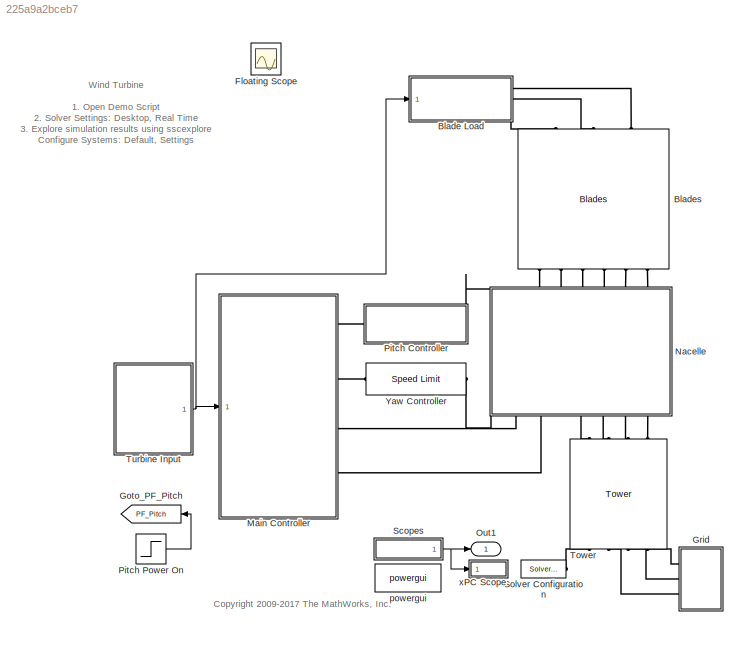
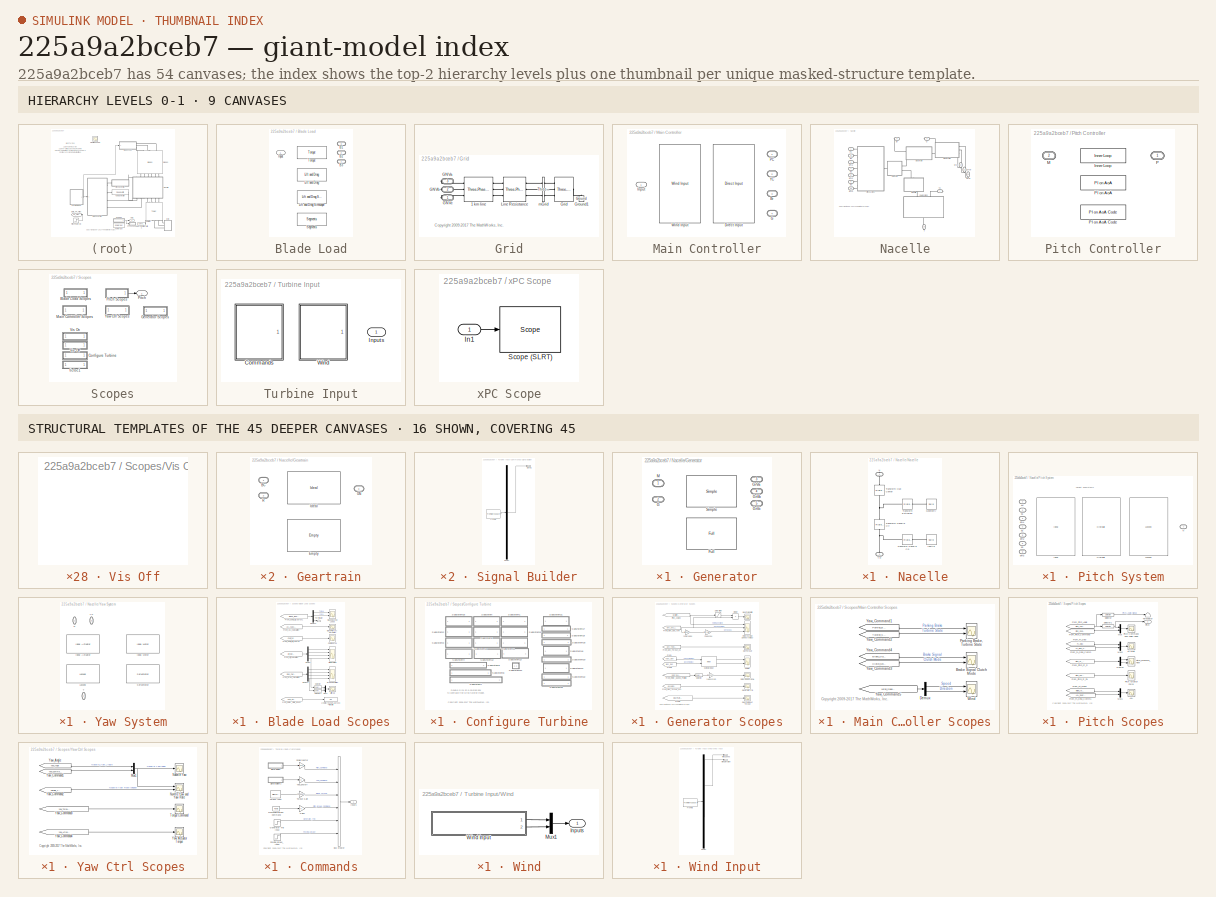
[diagram: thumbnail index - top-2 hierarchy levels (9 canvases) + 16 structural-template representatives of the remaining 45 canvases]
MODEL slx_225a9a2bceb7
KIND model
CONFIG AbsTol = 1e-4
CONFIG EnableMultiTasking = on
CONFIG FixedStep = auto
CONFIG MaxStep = 0.01
CONFIG MinStep = auto
CONFIG PostLoadFcn = warning off Simulink:blocks:MatchingGotoNotFound\nwarning off Simulink:blocks:MatchingFromNotFound\nwarning('off','Simulink:SL_OutputNotConnected');\nwarning off Simulink:Engine:SaveWithParameterizedLinks_Warning\nwarning off Simulink:Engine:SaveWithDisabledLinks_Warning\nwarning('off','Simulink:fixpoint:fxpParameterPrecisionLoss');\nwarning off Simulink:blocks:DTConversionUncessary\nwarning off ne_sli:s...<+245ch>
CONFIG PreLoadFcn = warning off Simulink:Commands:LoadMdlParameterizedLink
CONFIG RelTol = 1e-4
CONFIG SampleTimeConstraint = Unconstrained
CONFIG Solver = ode23t
CONFIG SolverName = ode23t
CONFIG StartFcn = tic
CONFIG StartTime = 0.0
CONFIG StopFcn = Elapsed_Sim_Time = toc;\ndisp(['Elapsed time is ' num2str(Elapsed_Sim_Time)]);
CONFIG StopTime = 70
BLOCK [SubSystem] Blade Load
  AttributesFormatString = %<ActiveVariant>
  OverrideUsingVariant = Lift_and_Drag
  Ports = [1, 0, 0, 0, 0, 0, 3]
  RequestExecContextInheritance = off
  Variant = on
BLOCK [PMIOPort] Blade Load/B1
  Port = 3
  Side = Right
BLOCK [PMIOPort] Blade Load/B2
  Port = 2
  Side = Right
BLOCK [PMIOPort] Blade Load/B3
  Port = 1
  Side = Right
BLOCK [Inport] Blade Load/Input
  IconDisplay = Port number
BLOCK [Reference] Blade Load/Lift and Drag  REF=Wind_Lib/Lift and Drag
  Ports = [1, 0, 0, 0, 0, 0, 3]
  SourceBlock = Wind_Lib/Lift and Drag
BLOCK [Reference] Blade Load/Lift and Drag Simscape  REF=Wind_Lib/Lift and Drag Simscape
  Ports = [1, 0, 0, 0, 0, 0, 3]
  SourceBlock = Wind_Lib/Lift and Drag Simscape
BLOCK [Reference] Blade Load/Segments  REF=Wind_Lib/Segments
  Ports = [1, 0, 0, 0, 0, 0, 3]
  SourceBlock = Wind_Lib/Segments
BLOCK [Reference] Blade Load/Torque  REF=Wind_Lib/Torque
  Ports = [1, 0, 0, 0, 0, 0, 3]
  SourceBlock = Wind_Lib/Torque
BLOCK [Reference] Blades  REF=Blades_Lib/Blades
  Ports = [0, 0, 0, 0, 0, 6, 3]
  SourceBlock = Blades_Lib/Blades
BLOCK [Scope] Floating Scope
  IOType = viewer
  NumInputPorts = 1
  Ports = []
  ScopeSpecificationString = C++SS(StrPVP('Location','[376, 294, 700, 533]'),StrPVP('Open','off'),MxPVP('AxesTitles',53,'struct(''axes1'',''%<SignalLabel>'')'),StrPVP('DataFormat','StructureWithTime'),StrPVP('BlockParamSampleTime','0'),StrPVP('LimitDataPoints','on'),StrPVP('DataLoggingDecimation','1'),StrPVP('BlockParamSampleInput','off'),StrPVP('DataLoggingDecimation','1'),StrPVP('DataLoggingDecimation','1'),StrPVP('DataLogg...<+765ch>
BLOCK [Goto] Goto_PF_Pitch
  GotoTag = PF_Pitch
  TagVisibility = global
BLOCK [SubSystem] Grid
  Ports = [0, 0, 0, 0, 0, 0, 3]
  RequestExecContextInheritance = off
  Variant = off
BLOCK [Reference] Grid/1 km line   REF=powerlib/Elements/Three-Phase
PI Section Line
  AttributesFormatString = \n
  Ports = [0, 0, 0, 0, 0, 3, 3]
  SourceBlock = powerlib/Elements/Three-Phase\nPI Section Line
  SourceProductBaseCode = PS
  SourceProductName = Simscape Power Systems
  SourceType = Three-Phase PI Section Line
BLOCK [PMIOPort] Grid/GNVa
  Port = 3
  Side = Right
BLOCK [PMIOPort] Grid/GNVb
  Port = 2
  Side = Right
BLOCK [PMIOPort] Grid/GNVc
  Port = 1
  Side = Right
BLOCK [Reference] Grid/Grid  REF=powerlib/Electrical
Sources/Three-Phase
Programmable
Voltage Source
  Ports = [0, 0, 0, 0, 0, 1, 3]
  SourceBlock = powerlib/Electrical\nSources/Three-Phase\nProgrammable\nVoltage Source
  SourceProductBaseCode = PS
  SourceProductName = Simscape Power Systems
  SourceType = Three-Phase Programmable Voltage Source
BLOCK [Reference] Grid/Ground1  REF=powerlib/Elements/Ground
  AttributesFormatString = \n
  Ports = [0, 0, 0, 0, 0, 1]
  SourceBlock = powerlib/Elements/Ground
  SourceProductBaseCode = PS
  SourceProductName = Simscape Power Systems
  SourceType = Ground
BLOCK [Reference] Grid/Line Resistance  REF=powerlib/Elements/Three-Phase
Mutual Inductance
Z1-Z0
  AttributesFormatString = \n
  Ports = [0, 0, 0, 0, 0, 3, 3]
  SourceBlock = powerlib/Elements/Three-Phase\nMutual Inductance\nZ1-Z0
  SourceProductBaseCode = PS
  SourceProductName = Simscape Power Systems
  SourceType = Three-Phase Mutual Inductance Z1-Z0
BLOCK [Reference] Grid/mGrid  REF=powerlib/Measurements/Three-Phase
V-I Measurement
  Ports = [0, 0, 0, 0, 0, 3, 3]
  SourceBlock = powerlib/Measurements/Three-Phase\nV-I Measurement
  SourceProductBaseCode = PS
  SourceProductName = Simscape Power Systems
  SourceType = Three-Phase VI Measurement
BLOCK [SubSystem] Main Controller
  AttributesFormatString = %<ActiveVariant>
  OverrideUsingVariant = Wind_Input
  Ports = [1, 0, 0, 0, 0, 0, 4]
  RequestExecContextInheritance = off
  Variant = on
BLOCK [PMIOPort] Main Controller/Br
  Port = 3
  Side = Right
  Tag = PMCPort
BLOCK [Reference] Main Controller/Direct Input  REF=Main_Controller_Lib/Direct Input
  Ports = [1, 0, 0, 0, 0, 0, 4]
  SourceBlock = Main_Controller_Lib/Direct Input
BLOCK [PMIOPort] Main Controller/G
  Port = 4
  Side = Right
  Tag = PMCPort
BLOCK [Inport] Main Controller/Input
  IconDisplay = Port number
BLOCK [PMIOPort] Main Controller/PC
  Port = 1
  Side = Right
  Tag = PMCPort
BLOCK [Reference] Main Controller/Wind Input  REF=Main_Controller_Lib/Wind Input
  Ports = [1, 0, 0, 0, 0, 0, 4]
  SourceBlock = Main_Controller_Lib/Wind Input
BLOCK [PMIOPort] Main Controller/YC
  Port = 2
  Side = Right
  Tag = PMCPort
BLOCK [SubSystem] Nacelle
  Ports = [0, 0, 0, 0, 0, 7, 7]
  RequestExecContextInheritance = off
  Variant = off
BLOCK [PMIOPort] Nacelle/B1
  Port = 2
  Side = Left
  Tag = PMCPort
BLOCK [PMIOPort] Nacelle/B2
  Port = 4
  Side = Left
  Tag = PMCPort
BLOCK [PMIOPort] Nacelle/B3
  Port = 6
  Side = Left
  Tag = PMCPort
BLOCK [PMIOPort] Nacelle/BPA1
  Port = 3
  Side = Left
  Tag = PMCPort
BLOCK [PMIOPort] Nacelle/BPA2
  Port = 5
  Side = Left
  Tag = PMCPort
BLOCK [PMIOPort] Nacelle/BPA3
  Port = 12
  Side = Left
  Tag = PMCPort
BLOCK [PMIOPort] Nacelle/Br
  Port = 8
  Side = Right
  Tag = PMCPort
BLOCK [PMIOPort] Nacelle/G
  Port = 9
  Side = Right
  Tag = PMCPort
BLOCK [SubSystem] Nacelle/Geartrain
  AttributesFormatString = %<ActiveVariant>
  OverrideUsingVariant = Ideal
  Ports = [0, 0, 0, 0, 0, 2, 1]
  RequestExecContextInheritance = off
  Variant = on
BLOCK [PMIOPort] Nacelle/Geartrain/BC
  Port = 1
  Side = Left
  Tag = PMCPort
BLOCK [Reference] Nacelle/Geartrain/Empty  REF=Geartrain_Lib/Empty
  Ports = [0, 0, 0, 0, 0, 2, 1]
  SourceBlock = Geartrain_Lib/Empty
BLOCK [PMIOPort] Nacelle/Geartrain/GN
  Port = 3
  Side = Right
  Tag = PMCPort
BLOCK [Reference] Nacelle/Geartrain/Ideal  REF=Geartrain_Lib/Ideal
  Ports = [0, 0, 0, 0, 0, 2, 1]
  SourceBlock = Geartrain_Lib/Ideal
BLOCK [PMIOPort] Nacelle/Geartrain/R
  Port = 2
  Side = Left
  Tag = PMCPort
BLOCK [SubSystem] Nacelle/Generator
  AttributesFormatString = %<ActiveVariant>
  OverrideUsingVariant = Full
  Ports = [0, 0, 0, 0, 0, 2, 3]
  RequestExecContextInheritance = off
  Variant = on
BLOCK [Reference] Nacelle/Generator/Full  REF=Generator_Lib/Full
  Ports = [0, 0, 0, 0, 0, 2, 3]
  SourceBlock = Generator_Lib/Full
BLOCK [PMIOPort] Nacelle/Generator/G
  Port = 2
  Side = Left
BLOCK [PMIOPort] Nacelle/Generator/GrVa
  Port = 3
  Side = Right
BLOCK [PMIOPort] Nacelle/Generator/GrVb
  Port = 4
  Side = Right
BLOCK [PMIOPort] Nacelle/Generator/GrVc
  Port = 5
  Side = Right
BLOCK [PMIOPort] Nacelle/Generator/M
  Port = 1
  Side = Left
  Tag = PMCPort
BLOCK [Reference] Nacelle/Generator/Simple  REF=Generator_Lib/Simple
  Ports = [0, 0, 0, 0, 0, 2, 3]
  SourceBlock = Generator_Lib/Simple
BLOCK [PMIOPort] Nacelle/GrVa
  Port = 11
  Side = Right
  Tag = PMCPort
BLOCK [PMIOPort] Nacelle/GrVb
  Port = 13
  Side = Right
  Tag = PMCPort
BLOCK [PMIOPort] Nacelle/GrVc
  Port = 14
  Side = Right
  Tag = PMCPort
BLOCK [SubSystem] Nacelle/Hub Axis
  AttributesFormatString = %<ActiveVariant>
  OverrideUsingVariant = Rotate
  Ports = [0, 0, 0, 0, 0, 1, 2]
  RequestExecContextInheritance = off
  Tag = CustomStyle
  Variant = on
BLOCK [PMIOPort] Nacelle/Hub Axis/G
  Port = 1
  Side = Right
BLOCK [Reference] Nacelle/Hub Axis/Locked  REF=Hub_Axis_Lib/Locked
  Ports = [0, 0, 0, 0, 0, 1, 2]
  SourceBlock = Hub_Axis_Lib/Locked
BLOCK [PMIOPort] Nacelle/Hub Axis/N
  Port = 3
  Side = Right
BLOCK [PMIOPort] Nacelle/Hub Axis/R
  Port = 2
  Side = Left
BLOCK [Reference] Nacelle/Hub Axis/Rotate  REF=Hub_Axis_Lib/Rotate
  Ports = [0, 0, 0, 0, 0, 1, 2]
  SourceBlock = Hub_Axis_Lib/Rotate
BLOCK [SubSystem] Nacelle/Nacelle
  Ports = [0, 0, 0, 0, 0, 1, 1]
  RequestExecContextInheritance = off
  Variant = off
BLOCK [Reference] Nacelle/Nacelle/Geometry  REF=sm_lib/Body Elements/Solid
  Ports = [0, 0, 0, 0, 0, 0, 1]
  SourceBlock = sm_lib/Body Elements/Solid
  SourceProductBaseCode = MS
  SourceProductName = Simscape Multibody
  SourceType = Solid
BLOCK [Reference] Nacelle/Nacelle/Inertia  REF=sm_lib/Body Elements/Solid
  Ports = [0, 0, 0, 0, 0, 0, 1]
  SourceBlock = sm_lib/Body Elements/Solid
  SourceProductBaseCode = MS
  SourceProductName = Simscape Multibody
  SourceType = Solid
BLOCK [PMIOPort] Nacelle/Nacelle/N
  Port = 1
  Side = Right
BLOCK [Reference] Nacelle/Nacelle/Transform Extrusion  REF=sm_lib/Frames and
Transforms/Rigid
Transform
  Ports = [0, 0, 0, 0, 0, 1, 1]
  SourceBlock = sm_lib/Frames and\nTransforms/Rigid\nTransform
  SourceProductBaseCode = MS
  SourceProductName = Simscape Multibody
  SourceType = Rigid\nTransform
BLOCK [Reference] Nacelle/Nacelle/Transform Hub Center  REF=sm_lib/Frames and
Transforms/Rigid
Transform
  Ports = [0, 0, 0, 0, 0, 1, 1]
  SourceBlock = sm_lib/Frames and\nTransforms/Rigid\nTransform
  SourceProductBaseCode = MS
  SourceProductName = Simscape Multibody
  SourceType = Rigid\nTransform
BLOCK [Reference] Nacelle/Nacelle/Transform Nacelle CG  REF=sm_lib/Frames and
Transforms/Rigid
Transform
  Ports = [0, 0, 0, 0, 0, 1, 1]
  SourceBlock = sm_lib/Frames and\nTransforms/Rigid\nTransform
  SourceProductBaseCode = MS
  SourceProductName = Simscape Multibody
  SourceType = Rigid\nTransform
BLOCK [Reference] Nacelle/Nacelle/Transform Nacelle Ctr  REF=sm_lib/Frames and
Transforms/Rigid
Transform
  Ports = [0, 0, 0, 0, 0, 1, 1]
  SourceBlock = sm_lib/Frames and\nTransforms/Rigid\nTransform
  SourceProductBaseCode = MS
  SourceProductName = Simscape Multibody
  SourceType = Rigid\nTransform
BLOCK [PMIOPort] Nacelle/Nacelle/YR
  Port = 2
  Side = Left
BLOCK [PMIOPort] Nacelle/PC
  Port = 1
  Side = Left
  Tag = PMCPort
BLOCK [SubSystem] Nacelle/Pitch System
  AttributesFormatString = %<ActiveVariant>
  OverrideUsingVariant = Ideal
  Ports = [0, 0, 0, 0, 0, 7, 1]
  RequestExecContextInheritance = off
  Tag = CustomStyle
  Variant = on
BLOCK [PMIOPort] Nacelle/Pitch System/B1
  Port = 2
  Side = Left
  Tag = PMCPort
BLOCK [PMIOPort] Nacelle/Pitch System/B2
  Port = 4
  Side = Left
  Tag = PMCPort
BLOCK [PMIOPort] Nacelle/Pitch System/B3
  Port = 6
  Side = Left
  Tag = PMCPort
BLOCK [PMIOPort] Nacelle/Pitch System/BPA1
  Port = 3
  Side = Left
  Tag = PMCPort
BLOCK [PMIOPort] Nacelle/Pitch System/BPA2
  Port = 5
  Side = Left
  Tag = PMCPort
BLOCK [PMIOPort] Nacelle/Pitch System/BPA3
  Port = 8
  Side = Left
  Tag = PMCPort
BLOCK [Reference] Nacelle/Pitch System/Hydraulic  REF=Pitch_System_Lib/Hydraulic
  Ports = [0, 0, 0, 0, 0, 7, 1]
  SourceBlock = Pitch_System_Lib/Hydraulic
BLOCK [Reference] Nacelle/Pitch System/Ideal  REF=Pitch_System_Lib/Ideal
  Ports = [0, 0, 0, 0, 0, 7, 1]
  SourceBlock = Pitch_System_Lib/Ideal
BLOCK [Reference] Nacelle/Pitch System/Locked  REF=Pitch_System_Lib/Locked
  Ports = [0, 0, 0, 0, 0, 7, 1]
  SourceBlock = Pitch_System_Lib/Locked
BLOCK [PMIOPort] Nacelle/Pitch System/N
  Port = 7
  Side = Right
  Tag = PMCPort
BLOCK [PMIOPort] Nacelle/Pitch System/PC
  Port = 1
  Side = Left
  Tag = PMCPort
BLOCK [PMIOPort] Nacelle/T
  Port = 10
  Side = Right
  Tag = PMCPort
BLOCK [PMIOPort] Nacelle/YC
  Port = 7
  Side = Right
  Tag = PMCPort
BLOCK [SubSystem] Nacelle/Yaw System
  AttributesFormatString = %<ActiveVariant>
  OverrideUsingVariant = Ideal_Actuator
  Ports = [0, 0, 0, 0, 0, 1, 2]
  RequestExecContextInheritance = off
  Tag = CustomStyle
  Variant = on
BLOCK [Reference] Nacelle/Yaw System/Ideal Actuator  REF=Yaw_System_Lib/Ideal Actuator
  Ports = [0, 0, 0, 0, 0, 1, 2]
  SourceBlock = Yaw_System_Lib/Ideal Actuator
BLOCK [Reference] Nacelle/Yaw System/Ideal Motor  REF=Yaw_System_Lib/Ideal Motor
  Ports = [0, 0, 0, 0, 0, 1, 2]
  SourceBlock = Yaw_System_Lib/Ideal Motor
BLOCK [Reference] Nacelle/Yaw System/Locked  REF=Yaw_System_Lib/Locked
  Ports = [0, 0, 0, 0, 0, 1, 2]
  SourceBlock = Yaw_System_Lib/Locked
BLOCK [PMIOPort] Nacelle/Yaw System/N
  Port = 1
  Side = Right
BLOCK [Reference] Nacelle/Yaw System/Servomotor  REF=Yaw_System_Lib/Servomotor
  Ports = [0, 0, 0, 0, 0, 1, 2]
  SourceBlock = Yaw_System_Lib/Servomotor
BLOCK [PMIOPort] Nacelle/Yaw System/T
  Port = 2
  Side = Left
BLOCK [PMIOPort] Nacelle/Yaw System/YC
  Port = 3
  Side = Right
BLOCK [Outport] Out1
  IconDisplay = Port number
BLOCK [SubSystem] Pitch Controller
  AttributesFormatString = %<ActiveVariant>
  OverrideUsingVariant = PI_on_AoA
  Ports = [0, 0, 0, 0, 0, 1, 1]
  RequestExecContextInheritance = off
  Variant = on
BLOCK [Reference] Pitch Controller/Inner Loop  REF=Pitch_Controller_Lib/Inner Loop
  Ports = [0, 0, 0, 0, 0, 1, 1]
  SourceBlock = Pitch_Controller_Lib/Inner Loop
BLOCK [PMIOPort] Pitch Controller/M
  Port = 2
  Side = Left
  Tag = PMCPort
BLOCK [PMIOPort] Pitch Controller/P
  Port = 1
  Side = Right
  Tag = PMCPort
BLOCK [Reference] Pitch Controller/PI on AoA  REF=Pitch_Controller_Lib/PI on AoA
  Ports = [0, 0, 0, 0, 0, 1, 1]
  SourceBlock = Pitch_Controller_Lib/PI on AoA
BLOCK [Reference] Pitch Controller/PI on AoA Code  REF=Pitch_Controller_Lib/PI on AoA Code
  Ports = [0, 0, 0, 0, 0, 1, 1]
  SourceBlock = Pitch_Controller_Lib/PI on AoA Code
BLOCK [Step] Pitch Power On
  After = 24
  Before = 24
  SampleTime = 0
  Time = 20
BLOCK [SubSystem] Scopes
  Ports = [0, 1]
  RequestExecContextInheritance = off
  Variant = off
BLOCK [SubSystem] Scopes/Blade Load Scopes
  AncestorBlock = Wind_Lib/Blade Load Scopes
  Ports = []
  RequestExecContextInheritance = off
  Variant = off
BLOCK [Display] Scopes/Blade Load Scopes/1 = Heli 2 = Young's Approx 3 = Windmill
  Decimation = 1
  Ports = [1]
BLOCK [Scope] Scopes/Blade Load Scopes/Blade Bearing Loads
  NumInputPorts = 2
  Ports = [2]
  ScopeSpecificationString = C++SS(StrPVP('Location','[536, 506, 1008, 715]'),StrPVP('Open','off'),StrPVP('ZoomMode','yonly'),MxPVP('AxesTitles',53,'struct(''axes1'',''%<SignalLabel>'',''axes2'',''%<SignalLabel>'')'),StrPVP('TimeRange','80'),StrPVP('YMin','-2000000~-500000'),StrPVP('YMax','4000000~500000'),StrPVP('SaveName','ScopeData10'),StrPVP('DataFormat','StructureWithTime'),StrPVP('LimitDataPoints','off'),StrPVP('BlockPa...<+947ch>
BLOCK [Scope] Scopes/Blade Load Scopes/Blade Pitch, AoA Zero Pitch
  NumInputPorts = 1
  Ports = [1]
  ScopeSpecificationString = C++SS(StrPVP('Location','[437, 643, 822, 910]'),StrPVP('Open','off'),StrPVP('ZoomMode','yonly'),MxPVP('AxesTitles',53,'struct(''axes1'',''%<SignalLabel>'')'),StrPVP('TimeRange','400'),StrPVP('YMin','0'),StrPVP('YMax','100'),StrPVP('SaveName','ScopeData3'),StrPVP('DataFormat','StructureWithTime'),StrPVP('LimitDataPoints','off'),StrPVP('BlockParamSampleTime','0'),StrPVP('DataLoggingDecimation','1'),...<+891ch>
BLOCK [Scope] Scopes/Blade Load Scopes/Coeff Approx
  NumInputPorts = 1
  Ports = [1]
  ScopeSpecificationString = C++SS(StrPVP('Location','[692, 281, 1164, 834]'),StrPVP('Open','off'),StrPVP('ZoomMode','yonly'),MxPVP('AxesTitles',53,'struct(''axes1'',''%<SignalLabel>'')'),StrPVP('TimeRange','400'),StrPVP('YMin','-0.1139986551164904'),StrPVP('YMax','0.01794057021302797'),StrPVP('SaveName','ScopeData4'),StrPVP('DataFormat','StructureWithTime'),StrPVP('LimitDataPoints','off'),StrPVP('BlockParamSampleTime','0'),S...<+926ch>
BLOCK [Demux] Scopes/Blade Load Scopes/Demux
  DisplayOption = bar
  Outputs = [1 3 3 3]
  Ports = [1, 4]
BLOCK [Demux] Scopes/Blade Load Scopes/Demux1
  DisplayOption = bar
  Outputs = [1 3 3 3]
  Ports = [1, 4]
BLOCK [Demux] Scopes/Blade Load Scopes/Demux2
  DisplayOption = bar
  Outputs = [3 3 12]
  Ports = [1, 3]
BLOCK [Scope] Scopes/Blade Load Scopes/Drag Calculation
  NumInputPorts = 4
  Ports = [4]
  ScopeSpecificationString = C++SS(StrPVP('Location','[84, 409, 556, 962]'),StrPVP('Open','off'),StrPVP('ZoomMode','yonly'),MxPVP('AxesTitles',53,'struct(''axes1'',''%<SignalLabel>'',''axes2'',''%<SignalLabel>'',''axes3'',''%<SignalLabel>'',''axes4'',''%<SignalLabel>'')'),StrPVP('TimeRange','400'),StrPVP('YMin','-2000~-50~0~0'),StrPVP('YMax','4000~100~6000~6000'),StrPVP('SaveName','ScopeData5'),StrPVP('DataFormat','StructureW...<+1004ch>
BLOCK [From] Scopes/Blade Load Scopes/From_AoA_Calculation
  GotoTag = AoA_Calculation
BLOCK [From] Scopes/Blade Load Scopes/From_Coeff_Lift_Approx
  GotoTag = Coeff_Lift_Approx
BLOCK [From] Scopes/Blade Load Scopes/From_Coeff_Lift_Approx1
  GotoTag = Blade_Bearing_Loads
  TagVisibility = global
BLOCK [From] Scopes/Blade Load Scopes/From_Drag_Calculation
  GotoTag = Drag_Calculation
BLOCK [From] Scopes/Blade Load Scopes/From_Lift_Calculation
  GotoTag = Lift_Calculation
BLOCK [From] Scopes/Blade Load Scopes/From_Rotor_State_Enum
  GotoTag = Rotor_State_Enum
  TagVisibility = global
BLOCK [Scope] Scopes/Blade Load Scopes/Lift Calculation
  NumInputPorts = 4
  Ports = [4]
  ScopeSpecificationString = C++SS(StrPVP('Location','[765, 373, 1275, 926]'),StrPVP('Open','off'),StrPVP('ZoomMode','yonly'),MxPVP('AxesTitles',53,'struct(''axes1'',''%<SignalLabel>'',''axes2'',''%<SignalLabel>'',''axes3'',''%<SignalLabel>'',''axes4'',''%<SignalLabel>'')'),StrPVP('TimeRange','400'),StrPVP('YMin','0~-50~-0.5~-50000'),StrPVP('YMax','2000~100~1.5~100000'),StrPVP('SaveName','ScopeData2'),StrPVP('DataFormat','Str...<+1011ch>
BLOCK [Scope] Scopes/Blade Load Scopes/Lift, Drag
  NumInputPorts = 1
  Ports = [1]
  ScopeSpecificationString = C++SS(StrPVP('Location','[117, 603, 673, 870]'),StrPVP('Open','off'),StrPVP('ZoomMode','yonly'),MxPVP('AxesTitles',53,'struct(''axes1'',''%<SignalLabel>'')'),StrPVP('TimeRange','160'),StrPVP('YMin','-250.4351759669439'),StrPVP('YMax','408.3026221352307'),StrPVP('SaveName','ScopeData1'),StrPVP('DataFormat','StructureWithTime'),StrPVP('LimitDataPoints','off'),StrPVP('BlockParamSampleTime','0'),StrPV...<+922ch>
BLOCK [Mux] Scopes/Blade Load Scopes/Mux1
  DisplayOption = bar
  Inputs = 2
  Ports = [2, 1]
BLOCK [Selector] Scopes/Blade Load Scopes/Selector
  IndexOptions = Index vector (dialog)
  Indices = [1]
  InputPortWidth = 3
  OutputSizes = 1
  Ports = [1, 1]
BLOCK [Selector] Scopes/Blade Load Scopes/Selector1
  IndexOptions = Index vector (dialog)
  Indices = [1 3]
  InputPortWidth = 3
  OutputSizes = 1
  Ports = [1, 1]
BLOCK [Terminator] Scopes/Blade Load Scopes/Terminator
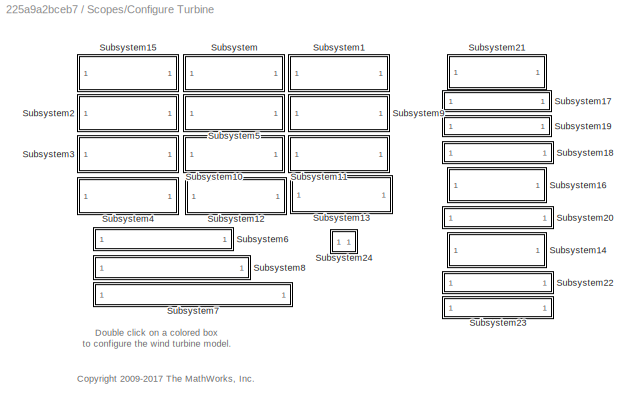
BLOCK [SubSystem] Scopes/Configure Turbine
  Ports = []
  RequestExecContextInheritance = off
  Variant = off
BLOCK [SubSystem] Scopes/Configure Turbine/Subsystem
  OpenFcn = Select_Turbine_Systems('I_Pitch Test', WT_Configs)
  Ports = []
  RequestExecContextInheritance = off
  Variant = off
BLOCK [SubSystem] Scopes/Configure Turbine/Subsystem1
  OpenFcn = Select_Turbine_Systems('H_Pitch Test', WT_Configs)
  Ports = []
  RequestExecContextInheritance = off
  Variant = off
BLOCK [SubSystem] Scopes/Configure Turbine/Subsystem10
  OpenFcn = Select_Turbine_Systems('I_Pitch IM_Yaw Test', WT_Configs)
  Ports = []
  RequestExecContextInheritance = off
  Variant = off
BLOCK [SubSystem] Scopes/Configure Turbine/Subsystem11
  OpenFcn = Select_Turbine_Systems('H_Pitch IM_Yaw Test', WT_Configs)
  Ports = []
  RequestExecContextInheritance = off
  Variant = off
BLOCK [SubSystem] Scopes/Configure Turbine/Subsystem12
  OpenFcn = Select_Turbine_Systems('I_Pitch S_Yaw Test', WT_Configs)
  Ports = []
  RequestExecContextInheritance = off
  Variant = off
BLOCK [SubSystem] Scopes/Configure Turbine/Subsystem13
  OpenFcn = Select_Turbine_Systems('H_Pitch S_Yaw Test', WT_Configs)
  Ports = []
  RequestExecContextInheritance = off
  Variant = off
BLOCK [SubSystem] Scopes/Configure Turbine/Subsystem14
  OpenFcn = Compare_Yaw_Actuators;
  Ports = []
  RequestExecContextInheritance = off
  Variant = off
BLOCK [SubSystem] Scopes/Configure Turbine/Subsystem15
  Ports = []
  RequestExecContextInheritance = off
  Variant = off
BLOCK [SubSystem] Scopes/Configure Turbine/Subsystem16
  OpenFcn = Compare_Pitch_Actuators;
  Ports = []
  RequestExecContextInheritance = off
  Variant = off
BLOCK [SubSystem] Scopes/Configure Turbine/Subsystem17
  OpenFcn = Pitch_Actuation_Linkage
  Ports = []
  RequestExecContextInheritance = off
  Variant = off
BLOCK [SubSystem] Scopes/Configure Turbine/Subsystem18
  OpenFcn = Pitch_Actuation_Hydraulic_Testrig
  Ports = []
  RequestExecContextInheritance = off
  Variant = off
BLOCK [SubSystem] Scopes/Configure Turbine/Subsystem19
  OpenFcn = Pitch_Control_Ideal_Testrig
  Ports = []
  RequestExecContextInheritance = off
  Variant = off
BLOCK [SubSystem] Scopes/Configure Turbine/Subsystem2
  OpenFcn = Select_Turbine_Systems('IA_Yaw Test', WT_Configs)
  Ports = []
  RequestExecContextInheritance = off
  Variant = off
BLOCK [SubSystem] Scopes/Configure Turbine/Subsystem20
  OpenFcn = Yaw_Actuation_Testrig
  Ports = []
  RequestExecContextInheritance = off
  Variant = off
BLOCK [SubSystem] Scopes/Configure Turbine/Subsystem21
  Ports = []
  RequestExecContextInheritance = off
  Variant = off
BLOCK [SubSystem] Scopes/Configure Turbine/Subsystem22
  OpenFcn = Generator_Testrig
  Ports = []
  RequestExecContextInheritance = off
  Variant = off
BLOCK [SubSystem] Scopes/Configure Turbine/Subsystem23
  OpenFcn = Turbine_State_Machine_Testrig
  Ports = []
  RequestExecContextInheritance = off
  Variant = off
BLOCK [SubSystem] Scopes/Configure Turbine/Subsystem24
  OpenFcn = Select_Turbine_Systems('H_Pitch S_Yaw Ge Gn Lift_Drag', WT_Configs)
  Ports = []
  RequestExecContextInheritance = off
  Variant = off
BLOCK [SubSystem] Scopes/Configure Turbine/Subsystem3
  OpenFcn = Select_Turbine_Systems('IM_Yaw Test', WT_Configs)
  Ports = []
  RequestExecContextInheritance = off
  Variant = off
BLOCK [SubSystem] Scopes/Configure Turbine/Subsystem4
  OpenFcn = Select_Turbine_Systems('S_Yaw Test', WT_Configs)
  Ports = []
  RequestExecContextInheritance = off
  Variant = off
BLOCK [SubSystem] Scopes/Configure Turbine/Subsystem5
  OpenFcn = Select_Turbine_Systems('I_Pitch IA_Yaw Test', WT_Configs)
  Ports = []
  RequestExecContextInheritance = off
  Variant = off
BLOCK [SubSystem] Scopes/Configure Turbine/Subsystem6
  OpenFcn = Select_Turbine_Systems('I_Pitch IA_Yaw Lift_Drag', WT_Configs)
  Ports = []
  RequestExecContextInheritance = off
  Variant = off
BLOCK [SubSystem] Scopes/Configure Turbine/Subsystem7
  OpenFcn = Select_Turbine_Systems('I_Pitch IA_Yaw Ge Gn Lift_Drag', WT_Configs)
  Ports = []
  RequestExecContextInheritance = off
  Variant = off
BLOCK [SubSystem] Scopes/Configure Turbine/Subsystem8
  OpenFcn = Select_Turbine_Systems('I_Pitch IA_Yaw Ge Lift_Drag', WT_Configs)
  Ports = []
  RequestExecContextInheritance = off
  Variant = off
BLOCK [SubSystem] Scopes/Configure Turbine/Subsystem9
  OpenFcn = Select_Turbine_Systems('H_Pitch IA_Yaw Test', WT_Configs)
  Ports = []
  RequestExecContextInheritance = off
  Variant = off
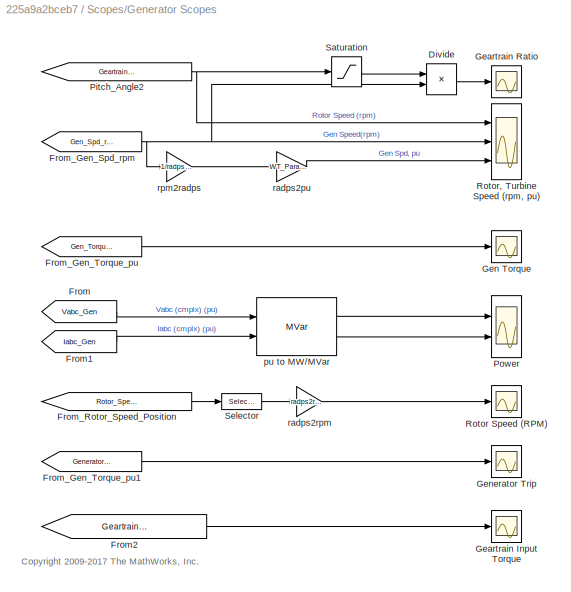
BLOCK [SubSystem] Scopes/Generator Scopes
  AncestorBlock = Generator_Lib/Generator Scopes
  Ports = []
  RequestExecContextInheritance = off
  Variant = off
BLOCK [Product] Scopes/Generator Scopes/Divide
  InputSameDT = off
  Inputs = /*
  OutDataTypeStr = Inherit: Inherit via internal rule
  Ports = [2, 1]
  RndMeth = Floor
  SaturateOnIntegerOverflow = off
BLOCK [From] Scopes/Generator Scopes/From
  GotoTag = Vabc_Gen
  TagVisibility = global
BLOCK [From] Scopes/Generator Scopes/From1
  GotoTag = Iabc_Gen
  TagVisibility = global
BLOCK [From] Scopes/Generator Scopes/From2
  GotoTag = Geartrain_Input_Torque
  TagVisibility = global
BLOCK [From] Scopes/Generator Scopes/From_Gen_Spd_rpm
  GotoTag = Gen_Spd_rpm
  TagVisibility = global
BLOCK [From] Scopes/Generator Scopes/From_Gen_Torque_pu
  GotoTag = Gen_Torque_pu
  TagVisibility = global
BLOCK [From] Scopes/Generator Scopes/From_Gen_Torque_pu1
  GotoTag = Generator_Trip
BLOCK [From] Scopes/Generator Scopes/From_Rotor_Speed_Position
  GotoTag = Rotor_Speed_Position
  TagVisibility = global
BLOCK [Scope] Scopes/Generator Scopes/Geartrain Input Torque
  NumInputPorts = 1
  Ports = [1]
  ScopeSpecificationString = C++SS(StrPVP('Location','[548, 288, 1019, 473]'),StrPVP('Open','off'),StrPVP('ZoomMode','xonly'),MxPVP('AxesTitles',53,'struct(''axes1'',''%<SignalLabel>'')'),MxPVP('ScopeGraphics',56,'struct(''FigureColor'',''[0.5 0.5 0.5]'',''AxesColor'',''[0 0 0]'',''AxesTickColor'',''[1 1 1]'',''LineColors'',''[1 1 0;1 0 1;0 1 1;1 0 0;0 1 0;0 0 1]'',''LineStyles'',''-|-|-|-|-|-'',''LineWidths'',''[0.5 0.5 0.5 ...<+1255ch>
BLOCK [Scope] Scopes/Generator Scopes/Geartrain Ratio
  NumInputPorts = 1
  Ports = [1]
  ScopeSpecificationString = C++SS(StrPVP('Location','[834, 241, 1158, 480]'),StrPVP('Open','off'),StrPVP('ZoomMode','yonly'),MxPVP('AxesTitles',53,'struct(''axes1'',''%<SignalLabel>'')'),StrPVP('YMin','70'),StrPVP('YMax','85'),StrPVP('SaveName','ScopeData4'),StrPVP('DataFormat','StructureWithTime'),StrPVP('LimitDataPoints','off'),StrPVP('BlockParamSampleTime','0'),StrPVP('DataLoggingDecimation','1'),StrPVP('BlockParamSampleI...<+866ch>
BLOCK [Scope] Scopes/Generator Scopes/Gen Torque
  NumInputPorts = 1
  Ports = [1]
  ScopeSpecificationString = C++SS(StrPVP('Location','[134, 418, 458, 657]'),StrPVP('Open','off'),StrPVP('ZoomMode','yonly'),MxPVP('AxesTitles',53,'struct(''axes1'',''%<SignalLabel>'')'),StrPVP('SaveName','ScopeData8'),StrPVP('DataFormat','StructureWithTime'),StrPVP('LimitDataPoints','off'),StrPVP('BlockParamSampleTime','0'),StrPVP('DataLoggingDecimation','1'),StrPVP('BlockParamSampleInput','off'),StrPVP('DataLoggingDecimatio...<+825ch>
BLOCK [Scope] Scopes/Generator Scopes/Generator Trip
  NumInputPorts = 1
  Ports = [1]
  ScopeSpecificationString = C++SS(StrPVP('Location','[134, 418, 458, 657]'),StrPVP('Open','off'),StrPVP('ZoomMode','yonly'),MxPVP('AxesTitles',53,'struct(''axes1'',''%<SignalLabel>'')'),StrPVP('SaveToWorkspace','on'),StrPVP('SaveName','Generator_Trip_DATA'),StrPVP('DataFormat','StructureWithTime'),StrPVP('LimitDataPoints','off'),StrPVP('BlockParamSampleTime','0'),StrPVP('DataLoggingDecimation','1'),StrPVP('BlockParamSampleIn...<+865ch>
BLOCK [From] Scopes/Generator Scopes/Pitch_Angle2
  GotoTag = Geartrain_Input_Speed
  TagVisibility = global
BLOCK [Scope] Scopes/Generator Scopes/Power
  NumInputPorts = 2
  Ports = [2]
  ScopeSpecificationString = Simulink.scopes.TimeScopeBlockCfg('CurrentConfiguration', extmgr.ConfigurationSet(extmgr.Configuration('Core','General UI',true),extmgr.Configuration('Core','Source UI',true),extmgr.Configuration('Sources','WiredSimulink',true,'DataLogging',true,'DataLoggingVariableName','Generator_Power_DATA','DataLoggingSaveFormat','StructureWithTime','DataLoggingDecimation','1'),extmgr.Configuration('Visuals','...<+2316ch>
BLOCK [Scope] Scopes/Generator Scopes/Rotor Speed (RPM)
  NumInputPorts = 1
  Ports = [1]
  ScopeSpecificationString = Simulink.scopes.TimeScopeBlockCfg('CurrentConfiguration', extmgr.ConfigurationSet(extmgr.Configuration('Core','General UI',true),extmgr.Configuration('Core','Source UI',true),extmgr.Configuration('Sources','WiredSimulink',true,'DataLoggingVariableName','ScopeData6','DataLoggingSaveFormat','StructureWithTime','DataLoggingDecimation','1'),extmgr.Configuration('Visuals','Time Domain',true,'Serialized...<+1739ch>
BLOCK [Scope] Scopes/Generator Scopes/Rotor, Turbine Speed (rpm, pu)
  NumInputPorts = 3
  Ports = [3]
  ScopeSpecificationString = C++SS(StrPVP('Location','[997, 249, 1754, 776]'),StrPVP('Open','off'),StrPVP('ZoomMode','yonly'),MxPVP('AxesTitles',53,'struct(''axes1'',''%<SignalLabel>'',''axes2'',''%<SignalLabel>'',''axes3'',''%<SignalLabel>'')'),MxPVP('ScopeGraphics',56,'struct(''FigureColor'',''[0.5 0.5 0.5]'',''AxesColor'',''[0 0 0]'',''AxesTickColor'',''[1 1 1]'',''LineColors'',''[1 1 0;1 0 1;0 1 1;1 0 0;0 1 0;0 0 1]'',''L...<+1297ch>
BLOCK [Saturate] Scopes/Generator Scopes/Saturation
  InputPortMap = u0
  LowerLimit = eps
  Ports = [1, 1]
  UpperLimit = inf
BLOCK [Selector] Scopes/Generator Scopes/Selector
  IndexOptions = Index vector (dialog)
  Indices = [2]
  InputPortWidth = 2
  OutputSizes = 1
  Ports = [1, 1]
BLOCK [Reference] Scopes/Generator Scopes/pu to MW//MVar  REF=Generator_Lib/Generator Scopes/pu to MW//MVar
  Ports = [2, 2]
  SourceBlock = Generator_Lib/Generator Scopes/pu to MW//MVar
  SourceType = SubSystem
BLOCK [Gain] Scopes/Generator Scopes/radps2pu
  Gain = WT_Params.Generator.radps2pu
  OutDataTypeStr = Inherit: Inherit via internal rule
  ParamDataTypeStr = Inherit: Inherit via internal rule
  SaturateOnIntegerOverflow = off
BLOCK [Gain] Scopes/Generator Scopes/radps2rpm
  Gain = radps2rpm
  OutDataTypeStr = Inherit: Inherit via internal rule
  ParamDataTypeStr = Inherit: Inherit via internal rule
  SaturateOnIntegerOverflow = off
BLOCK [Gain] Scopes/Generator Scopes/rpm2radps
  Gain = 1/radps2rpm
  OutDataTypeStr = Inherit: Inherit via internal rule
  ParamDataTypeStr = Inherit: Inherit via internal rule
  SaturateOnIntegerOverflow = off
BLOCK [SubSystem] Scopes/Main Controller Scopes
  AncestorBlock = Main_Controller_Lib/Main Controller Scopes
  Ports = []
  RequestExecContextInheritance = off
  Variant = off
BLOCK [Scope] Scopes/Main Controller Scopes/Brake Signal Clutch Mode
  NumInputPorts = 2
  Ports = [2]
  ScopeSpecificationString = C++SS(StrPVP('Location','[1075, 267, 1398, 878]'),StrPVP('Open','off'),MxPVP('AxesTitles',53,'struct(''axes1'',''%<SignalLabel>'',''axes2'',''%<SignalLabel>'')'),MxPVP('ScopeGraphics',56,'struct(''FigureColor'',''[0.5 0.5 0.5]'',''AxesColor'',''[0 0 0]'',''AxesTickColor'',''[1 1 1]'',''LineColors'',''[1 1 0;1 0 1;0 1 1;1 0 0;0 1 0;0 0 1]'',''LineStyles'',''-|-|-|-|-|-'',''LineWidths'',''[0.5 0.5 0...<+1207ch>
BLOCK [Demux] Scopes/Main Controller Scopes/Demux
  DisplayOption = bar
  Outputs = 2
  Ports = [1, 2]
BLOCK [Scope] Scopes/Main Controller Scopes/Parking Brake, Turbine State
  NumInputPorts = 2
  Ports = [2]
  ScopeSpecificationString = C++SS(StrPVP('Location','[964, 190, 1721, 710]'),StrPVP('Open','off'),MxPVP('AxesTitles',53,'struct(''axes1'',''%<SignalLabel>'',''axes2'',''%<SignalLabel>'')'),MxPVP('ScopeGraphics',56,'struct(''FigureColor'',''[0.5 0.5 0.5]'',''AxesColor'',''[0 0 0]'',''AxesTickColor'',''[1 1 1]'',''LineColors'',''[1 1 0;1 0 1;0 1 1;1 0 0;0 1 0;0 0 1]'',''LineStyles'',''-|-|-|-|-|-'',''LineWidths'',''[0.5 0.5 0....<+1205ch>
BLOCK [Scope] Scopes/Main Controller Scopes/Wind
  NumInputPorts = 2
  Ports = [2]
  ScopeSpecificationString = Simulink.scopes.TimeScopeBlockCfg('CurrentConfiguration', extmgr.ConfigurationSet(extmgr.Configuration('Core','General UI',true),extmgr.Configuration('Core','Source UI',true),extmgr.Configuration('Sources','WiredSimulink',true,'DataLogging',true,'DataLoggingVariableName','Wind_Turbine_Wind_DATA','DataLoggingSaveFormat','StructureWithTime','DataLoggingDecimation','1'),extmgr.Configuration('Visuals'...<+2583ch>
BLOCK [From] Scopes/Main Controller Scopes/Yaw_Command1
  GotoTag = Parking_Brake
  TagVisibility = global
BLOCK [From] Scopes/Main Controller Scopes/Yaw_Command2
  GotoTag = Turbine_State
  TagVisibility = global
BLOCK [From] Scopes/Main Controller Scopes/Yaw_Command3
  GotoTag = Clutch_Mode
BLOCK [From] Scopes/Main Controller Scopes/Yaw_Command4
  GotoTag = Brake_Signal
BLOCK [From] Scopes/Main Controller Scopes/Yaw_Command5
  GotoTag = Wind_Speed_Direction
  TagVisibility = global
BLOCK [Outport] Scopes/Pitch
  IconDisplay = Port number
BLOCK [SubSystem] Scopes/Pitch Scopes
  AncestorBlock = Pitch_Controller_Lib/Pitch Scopes
  Ports = [0, 1]
  RequestExecContextInheritance = off
  Variant = off
BLOCK [Scope] Scopes/Pitch Scopes/AoA
  NumInputPorts = 1
  Ports = [1]
  ScopeSpecificationString = C++SS(StrPVP('Location','[38, 56, 510, 479]'),StrPVP('Open','off'),MxPVP('AxesTitles',53,'struct(''axes1'',''%<SignalLabel>'')'),StrPVP('TimeRange','10'),StrPVP('YMin','-1.6'),StrPVP('YMax','-0.9'),StrPVP('SaveName','ScopeData2'),StrPVP('DataFormat','StructureWithTime'),StrPVP('LimitDataPoints','off'),StrPVP('BlockParamSampleTime','0'),StrPVP('DataLoggingDecimation','1'),StrPVP('BlockParamSampleIn...<+865ch>
BLOCK [Demux] Scopes/Pitch Scopes/Demux
  DisplayOption = bar
  Outputs = [2 1]
  Ports = [1, 2]
BLOCK [From] Scopes/Pitch Scopes/From_PA_Disp
  GotoTag = PA_Disp
BLOCK [From] Scopes/Pitch Scopes/From_PA_Disp1
  GotoTag = Inflow_Angle
  TagVisibility = global
BLOCK [From] Scopes/Pitch Scopes/From_PA_Disp_Comm
  GotoTag = PA_Disp_Comm
BLOCK [From] Scopes/Pitch Scopes/From_PA_Disp_Comm1
  GotoTag = AoA_Desired
  TagVisibility = global
BLOCK [From] Scopes/Pitch Scopes/From_Pitch_Angle
  GotoTag = Pitch_Angle
  TagVisibility = global
BLOCK [From] Scopes/Pitch Scopes/From_Pitch_Command
  GotoTag = Pitch_Command
  TagVisibility = global
BLOCK [From] Scopes/Pitch Scopes/From_Pitch_Pr_Fl
  GotoTag = Pitch_Pr_Fl
  TagVisibility = global
BLOCK [From] Scopes/Pitch Scopes/From_Pitch_Pr_Fl1
  GotoTag = Pitch_Force
  TagVisibility = global
BLOCK [Mux] Scopes/Pitch Scopes/Mux
  DisplayOption = bar
  Inputs = 2
  Ports = [2, 1]
BLOCK [Mux] Scopes/Pitch Scopes/Mux1
  DisplayOption = bar
  Inputs = 2
  Ports = [2, 1]
BLOCK [Mux] Scopes/Pitch Scopes/Mux2
  DisplayOption = bar
  Inputs = 2
  Ports = [2, 1]
BLOCK [Scope] Scopes/Pitch Scopes/PA Disp
  NumInputPorts = 1
  Ports = [1]
  ScopeSpecificationString = C++SS(StrPVP('Location','[38, 56, 510, 479]'),StrPVP('Open','off'),MxPVP('AxesTitles',53,'struct(''axes1'',''%<SignalLabel>'')'),StrPVP('TimeRange','10'),StrPVP('YMin','-1.6'),StrPVP('YMax','-0.9'),StrPVP('SaveName','ScopeData1'),StrPVP('DataFormat','StructureWithTime'),StrPVP('LimitDataPoints','off'),StrPVP('BlockParamSampleTime','0'),StrPVP('DataLoggingDecimation','1'),StrPVP('BlockParamSampleIn...<+865ch>
BLOCK [Outport] Scopes/Pitch Scopes/Pitch
  IconDisplay = Port number
BLOCK [Scope] Scopes/Pitch Scopes/Pitch Actuator Force
  NumInputPorts = 1
  Ports = [1]
  ScopeSpecificationString = C++SS(StrPVP('Location','[542, 505, 1019, 709]'),StrPVP('Open','off'),StrPVP('ZoomMode','yonly'),MxPVP('AxesTitles',53,'struct(''axes1'',''%<SignalLabel>'')'),StrPVP('TimeRange','80'),StrPVP('YMin','-78125'),StrPVP('YMax','84375'),StrPVP('SaveToWorkspace','on'),StrPVP('SaveName','Pitch_Actuator_Force_DATA'),StrPVP('DataFormat','StructureWithTime'),StrPVP('LimitDataPoints','off'),StrPVP('BlockParam...<+944ch>
BLOCK [Scope] Scopes/Pitch Scopes/Pitch Command and Angle (deg)
  NumInputPorts = 1
  Ports = [1]
  ScopeSpecificationString = Simulink.scopes.TimeScopeBlockCfg('CurrentConfiguration', extmgr.ConfigurationSet(extmgr.Configuration('Core','General UI',true),extmgr.Configuration('Core','Source UI',true),extmgr.Configuration('Sources','WiredSimulink',true,'DataLogging',true,'DataLoggingVariableName','Blade_Pitch_DATA','DataLoggingSaveFormat','StructureWithTime','DataLoggingDecimation','1'),extmgr.Configuration('Visuals','Time...<+1908ch>
BLOCK [Scope] Scopes/Pitch Scopes/Pitch_Pressure_Flow
  NumInputPorts = 2
  Ports = [2]
  ScopeSpecificationString = C++SS(StrPVP('Location','[516, 529, 997, 989]'),StrPVP('Open','off'),MxPVP('AxesTitles',53,'struct(''axes1'',''%<SignalLabel>'',''axes2'',''%<SignalLabel>'')'),StrPVP('YMin','-5~-5'),StrPVP('YMax','20~5'),StrPVP('SaveName','ScopeData3'),StrPVP('DataFormat','StructureWithTime'),StrPVP('LimitDataPoints','off'),StrPVP('BlockParamSampleTime','0'),StrPVP('DataLoggingDecimation','1'),StrPVP('BlockParamS...<+872ch>
BLOCK [Selector] Scopes/Pitch Scopes/Selector
  IndexOptions = Index vector (dialog)
  Indices = [1 ]
  InputPortWidth = 3
  OutputSizes = 1
  Ports = [1, 1]
BLOCK [Selector] Scopes/Pitch Scopes/Selector1
  IndexOptions = Index vector (dialog)
  Indices = [1 ]
  InputPortWidth = 3
  OutputSizes = 1
  Ports = [1, 1]
BLOCK [Terminator] Scopes/Pitch Scopes/Terminator
BLOCK [SubSystem] Scopes/Vis Off
  OpenFcn = set_param(bdroot,'SimMechanicsOpenEditorOnUpdate','off');
  Ports = []
  RequestExecContextInheritance = off
  Variant = off
BLOCK [SubSystem] Scopes/Vis On
  OpenFcn = set_param(bdroot,'SimMechanicsOpenEditorOnUpdate','on');
  Ports = []
  RequestExecContextInheritance = off
  Variant = off
BLOCK [SubSystem] Scopes/Yaw Ctrl Scopes
  AncestorBlock = Yaw_Controller_Lib/Yaw Ctrl Scopes
  Ports = []
  RequestExecContextInheritance = off
  Variant = off
BLOCK [Mux] Scopes/Yaw Ctrl Scopes/Mux1
  DisplayOption = bar
  Inputs = 2
  Ports = [2, 1]
BLOCK [Scope] Scopes/Yaw Ctrl Scopes/Nacelle Yaw
  NumInputPorts = 1
  Ports = [1]
  ScopeSpecificationString = Simulink.scopes.TimeScopeBlockCfg('CurrentConfiguration', extmgr.ConfigurationSet(extmgr.Configuration('Core','General UI',true),extmgr.Configuration('Core','Source UI',true),extmgr.Configuration('Sources','WiredSimulink',true,'DataLogging',true,'DataLoggingVariableName','Nacelle_Yaw_DATA','DataLoggingSaveFormat','StructureWithTime','DataLoggingDecimation','1'),extmgr.Configuration('Visuals','Time...<+1956ch>
BLOCK [Scope] Scopes/Yaw Ctrl Scopes/Nacelle Yaw and Yaw Rate
  NumInputPorts = 2
  Ports = [2]
  ScopeSpecificationString = C++SS(StrPVP('Location','[683, 507, 1019, 762]'),StrPVP('Open','off'),StrPVP('ZoomMode','yonly'),MxPVP('AxesTitles',53,'struct(''axes1'',''%<SignalLabel>'',''axes2'',''%<SignalLabel>'')'),MxPVP('ScopeGraphics',56,'struct(''FigureColor'',''[0.5 0.5 0.5]'',''AxesColor'',''[0 0 0]'',''AxesTickColor'',''[1 1 1]'',''LineColors'',''[1 1 0;1 0 1;0 1 1;1 0 0;0 1 0;0 0 1]'',''LineStyles'',''-|-|-|-|-|-'','...<+1253ch>
BLOCK [Scope] Scopes/Yaw Ctrl Scopes/Torque Command
  NumInputPorts = 1
  Ports = [1]
  ScopeSpecificationString = C++SS(StrPVP('Location','[634, 150, 1275, 621]'),StrPVP('Open','off'),StrPVP('ZoomMode','yonly'),MxPVP('AxesTitles',53,'struct(''axes1'',''%<SignalLabel>'')'),StrPVP('TimeRange','3.951473136915078'),StrPVP('SaveName','ScopeData1'),StrPVP('DataFormat','StructureWithTime'),StrPVP('LimitDataPoints','off'),StrPVP('BlockParamSampleTime','0'),StrPVP('DataLoggingDecimation','1'),StrPVP('BlockParamSampleI...<+866ch>
BLOCK [Scope] Scopes/Yaw Ctrl Scopes/Yaw Actuator Torque
  NumInputPorts = 1
  Ports = [1]
  ScopeSpecificationString = Simulink.scopes.TimeScopeBlockCfg('CurrentConfiguration', extmgr.ConfigurationSet(extmgr.Configuration('Core','General UI',true),extmgr.Configuration('Core','Source UI',true),extmgr.Configuration('Sources','WiredSimulink',true,'DataLogging',true,'DataLoggingVariableName','Yaw_Actuator_Torque_DATA','DataLoggingSaveFormat','StructureWithTime','DataLoggingDecimation','1'),extmgr.Configuration('Visual...<+1688ch>
BLOCK [From] Scopes/Yaw Ctrl Scopes/Yaw_Angle
  GotoTag = Yaw_Angle
  TagVisibility = global
BLOCK [From] Scopes/Yaw Ctrl Scopes/Yaw_Command1
  GotoTag = Yaw_Command
  TagVisibility = global
BLOCK [From] Scopes/Yaw Ctrl Scopes/Yaw_Command2
  GotoTag = Nacelle_Yaw_Rate
  TagVisibility = global
BLOCK [From] Scopes/Yaw Ctrl Scopes/Yaw_Command3
  GotoTag = Yaw_Torque_Command
  TagVisibility = global
BLOCK [From] Scopes/Yaw Ctrl Scopes/Yaw_Command4
  GotoTag = Yaw_Actuator_Torque
  TagVisibility = global
BLOCK [SubSystem] Scopes/tictoc1
  OpenFcn = open('Wind_Turbine_Demo_Script.html')
  Ports = []
  RequestExecContextInheritance = off
  Variant = off
BLOCK [Reference] Solver Configuration  REF=nesl_utility/Solver
Configuration
  Ports = [0, 0, 0, 0, 0, 0, 1]
  SourceBlock = nesl_utility/Solver\nConfiguration
  SourceProductBaseCode = SS
  SourceProductName = Simscape
  SourceType = Solver\nConfiguration
BLOCK [Reference] Tower  REF=Tower/Tower
  Ports = [0, 0, 0, 0, 0, 4, 4]
  SourceBlock = Tower/Tower
BLOCK [SubSystem] Turbine Input
  AttributesFormatString = %<ActiveVariant>
  OverrideUsingVariant = Wind
  Ports = [0, 1]
  RequestExecContextInheritance = off
  Variant = on
BLOCK [SubSystem] Turbine Input/Commands
  Ports = [0, 1]
  RequestExecContextInheritance = off
  Variant = off
  VariantControl = Commands
BLOCK [BusCreator] Turbine Input/Commands/Bus Creator
  DisplayOption = bar
  InheritFromInputs = on
  Inputs = 6
  Ports = [6, 1]
BLOCK [Gain] Turbine Input/Commands/Gain1
  OutDataTypeStr = Inherit: Inherit via internal rule
  ParamDataTypeStr = Inherit: Inherit via internal rule
  SaturateOnIntegerOverflow = off
BLOCK [Step] Turbine Input/Commands/Generator Trip Input
  Before = 1
  SampleTime = 0
  Time = 90
BLOCK [Outport] Turbine Input/Commands/Inputs
  IconDisplay = Port number
BLOCK [Reference] Turbine Input/Commands/Mechanical Brake Command  REF=simulink/Sources/Ramp
  Ports = [0, 1]
  SourceBlock = simulink/Sources/Ramp
  SourceProductBaseCode = SL
  SourceProductName = Simulink
  SourceType = Ramp
BLOCK [Step] Turbine Input/Commands/Parking_Brake_Input
  After = 0
  Before = 1
  SampleTime = 0
  Time = 5
BLOCK [Gain] Turbine Input/Commands/Scalar2Vector
  Gain = [1 1 1]
  OutDataTypeStr = Inherit: Inherit via internal rule
  ParamDataTypeStr = Inherit: Inherit via internal rule
  SaturateOnIntegerOverflow = off
BLOCK [SubSystem] Turbine Input/Commands/Signal Builder
  ClipboardFcn = sigbuilder_block('clipboard');
  CloseFcn = sigbuilder_block('close');
  ContinueFcn = sigbuilder_block('continue')
  CopyFcn = sigbuilder_block('copy');
  DeleteFcn = sigbuilder_block('delete');
  LoadFcn = sigbuilder_block('load');
  MaskHideContents = on
  ModelCloseFcn = sigbuilder_block('modelClose');
  NameChangeFcn = sigbuilder_block('namechange');
  OpenFcn = sigbuilder_block('open',[214.5 254.25 550.5 399.75 ]);
  PauseFcn = sigbuilder_block('pause')
  Ports = [0, 1]
  PreSaveFcn = sigbuilder_block('preSave');
  RequestExecContextInheritance = off
  StartFcn = sigbuilder_block('start');
  StopFcn = sigbuilder_block('stop');
  Tag = STV Subsys
  Variant = off
BLOCK [Demux] Turbine Input/Commands/Signal Builder/Demux
  Outputs = 1
  Ports = [1, 1]
  Tag = STV Demux
BLOCK [FromWorkspace] Turbine Input/Commands/Signal Builder/FromWs
  SampleTime = 0
  Tag = STV FromWs
  VariableName = tuvar
  ZeroCross = on
BLOCK [Outport] Turbine Input/Commands/Signal Builder/Signal 1
  IconDisplay = Port number
  Tag = STV Outport
BLOCK [SubSystem] Turbine Input/Commands/Signal Builder2
  ClipboardFcn = sigbuilder_block('clipboard');
  CloseFcn = sigbuilder_block('close');
  ContinueFcn = sigbuilder_block('continue')
  CopyFcn = sigbuilder_block('copy');
  DeleteFcn = sigbuilder_block('delete');
  LoadFcn = sigbuilder_block('load');
  MaskHideContents = on
  ModelCloseFcn = sigbuilder_block('modelClose');
  NameChangeFcn = sigbuilder_block('namechange');
  OpenFcn = sigbuilder_block('open',[28.5 161.25 550.5 489 ]);
  PauseFcn = sigbuilder_block('pause')
  Ports = [0, 1]
  PreSaveFcn = sigbuilder_block('preSave');
  RequestExecContextInheritance = off
  StartFcn = sigbuilder_block('start');
  StopFcn = sigbuilder_block('stop');
  Tag = STV Subsys
  Variant = off
BLOCK [Demux] Turbine Input/Commands/Signal Builder2/Demux
  Outputs = 1
  Ports = [1, 1]
  Tag = STV Demux
BLOCK [FromWorkspace] Turbine Input/Commands/Signal Builder2/FromWs
  SampleTime = 0
  Tag = STV FromWs
  VariableName = tuvar
  ZeroCross = on
BLOCK [Outport] Turbine Input/Commands/Signal Builder2/Signal 1
  IconDisplay = Port number
  Tag = STV Outport
BLOCK [Gain] Turbine Input/Commands/Torque Gain
  Gain = 120000*1.23
  OutDataTypeStr = Inherit: Inherit via internal rule
  ParamDataTypeStr = Inherit: Inherit via internal rule
  SaturateOnIntegerOverflow = off
BLOCK [DiscretePulseGenerator] Turbine Input/Commands/Torque Input
  Amplitude = 10
  Period = 100
  Ports = [0, 1]
  PulseType = Time based
  PulseWidth = 10
BLOCK [Gain] Turbine Input/Commands/Yaw_Shutoff
  OutDataTypeStr = Inherit: Inherit via internal rule
  ParamDataTypeStr = Inherit: Inherit via internal rule
  SaturateOnIntegerOverflow = off
BLOCK [Outport] Turbine Input/Inputs
  IconDisplay = Port number
BLOCK [SubSystem] Turbine Input/Wind
  Ports = [0, 1]
  RequestExecContextInheritance = off
  Variant = off
  VariantControl = Wind
BLOCK [Outport] Turbine Input/Wind/Inputs
  IconDisplay = Port number
BLOCK [Mux] Turbine Input/Wind/Mux1
  DisplayOption = bar
  Inputs = 2
  Ports = [2, 1]
BLOCK [SubSystem] Turbine Input/Wind/Wind Input
  ClipboardFcn = sigbuilder_block('clipboard');
  CloseFcn = sigbuilder_block('close');
  ContinueFcn = sigbuilder_block('continue')
  CopyFcn = sigbuilder_block('copy');
  DeleteFcn = sigbuilder_block('delete');
  LoadFcn = sigbuilder_block('load');
  MaskHideContents = on
  ModelCloseFcn = sigbuilder_block('modelClose');
  NameChangeFcn = sigbuilder_block('namechange');
  OpenFcn = sigbuilder_block('open',[17.4 220.2 762 360.6 ]);
  PauseFcn = sigbuilder_block('pause')
  Ports = [0, 2]
  PreSaveFcn = sigbuilder_block('preSave');
  RequestExecContextInheritance = off
  StartFcn = sigbuilder_block('start');
  StopFcn = sigbuilder_block('stop');
  Tag = STV Subsys
  Variant = off
BLOCK [Demux] Turbine Input/Wind/Wind Input/Demux
  Outputs = 2
  Ports = [1, 2]
  Tag = STV Demux
BLOCK [FromWorkspace] Turbine Input/Wind/Wind Input/FromWs
  SampleTime = 0
  Tag = STV FromWs
  VariableName = tuvar
  ZeroCross = on
BLOCK [Outport] Turbine Input/Wind/Wind Input/Wind Direction
  IconDisplay = Port number
  Port = 2
  Tag = STV Outport
BLOCK [Outport] Turbine Input/Wind/Wind Input/Wind Speed
  IconDisplay = Port number
  Tag = STV Outport
BLOCK [Reference] Yaw Controller  REF=Yaw_Controller_Lib/Speed Limit
  Ports = [0, 0, 0, 0, 0, 1, 1]
  SourceBlock = Yaw_Controller_Lib/Speed Limit
BLOCK [Reference] powergui  REF=powerlib/powergui
  Ports = []
  SourceBlock = powerlib/powergui
  SourceProductBaseCode = PS
  SourceProductName = Simscape Power Systems
  SourceType = PSB option menu block
BLOCK [SubSystem] xPC Scope
  Ports = [1]
  RequestExecContextInheritance = off
  Variant = off
BLOCK [Inport] xPC Scope/In1
  IconDisplay = Port number
BLOCK [Reference] xPC Scope/Scope (SLRT)   REF=slrtlib/Displays and
Logging/Scope 
  Ports = [1]
  SourceBlock = slrtlib/Displays and\nLogging/Scope
  SourceProductBaseCode = XP
  SourceProductName = Simulink Real-Time
  SourceType = xpcscopeblock
ANNOTATION (root): 1. Open Demo Script 2. Solver Settings: Desktop , Real Time 3. Explore simulation results using sscexplore Configure Systems: Default , Settings
ANNOTATION (root): <copyright redacted>
ANNOTATION (root): Wind Turbine
ANNOTATION Grid: <copyright redacted>
ANNOTATION Nacelle: <copyright redacted>
ANNOTATION Nacelle/Pitch System: Variant Subsystems
ANNOTATION Scopes/Configure Turbine: <copyright redacted>
ANNOTATION Scopes/Configure Turbine: Double click on a colored box to configure the wind turbine model.
ANNOTATION Scopes/Generator Scopes: <copyright redacted>
ANNOTATION Scopes/Main Controller Scopes: <copyright redacted>
ANNOTATION Scopes/Pitch Scopes: <copyright redacted>
ANNOTATION Scopes/Yaw Ctrl Scopes: <copyright redacted>
ANNOTATION Turbine Input/Commands: <copyright redacted>
LINE Pitch Power On:1 -> Goto_PF_Pitch:1
LINE Scopes/Pitch Scopes:1 -> Scopes/Pitch:1
NET Scopes:1 -> Out1:1, xPC Scope:1
LINE Turbine Input/Commands/Bus Creator:1 -> Turbine Input/Commands/Inputs:1
LINE Turbine Input/Commands/Gain1:1 -> Turbine Input/Commands/Bus Creator:4
LINE Turbine Input/Commands/Generator Trip Input:1 -> Turbine Input/Commands/Bus Creator:5
LINE Turbine Input/Commands/Mechanical Brake Command:1 -> Turbine Input/Commands/Gain1:1
LINE Turbine Input/Commands/Parking_Brake_Input:1 -> Turbine Input/Commands/Bus Creator:6
LINE Turbine Input/Commands/Scalar2Vector:1 -> Turbine Input/Commands/Bus Creator:1
LINE Turbine Input/Commands/Signal Builder2:1 -> Turbine Input/Commands/Yaw_Shutoff:1
LINE Turbine Input/Commands/Signal Builder:1 -> Turbine Input/Commands/Scalar2Vector:1
LINE Turbine Input/Commands/Torque Gain:1 -> Turbine Input/Commands/Bus Creator:3
LINE Turbine Input/Commands/Torque Input:1 -> Turbine Input/Commands/Torque Gain:1
LINE Turbine Input/Commands/Yaw_Shutoff:1 -> Turbine Input/Commands/Bus Creator:2
LINE Turbine Input/Wind/Mux1:1 -> Turbine Input/Wind/Inputs:1
LINE Turbine Input/Wind/Wind Input:1 -> Turbine Input/Wind/Mux1:1
LINE Turbine Input/Wind/Wind Input:2 -> Turbine Input/Wind/Mux1:2
NET Turbine Input:1 -> Blade Load:1, Main Controller:1
LINE xPC Scope/In1:1 -> xPC Scope/Scope (SLRT) :1
PLINE Blade Load:RConn1 -- Blades:RConn3
PLINE Blade Load:RConn2 -- Blades:RConn2
PLINE Blade Load:RConn3 -- Blades:RConn1
PLINE Blades:LConn1 -- Nacelle:LConn2
PLINE Blades:LConn2 -- Nacelle:LConn3
PLINE Blades:LConn3 -- Nacelle:LConn4
PLINE Blades:LConn4 -- Nacelle:LConn5
PLINE Blades:LConn5 -- Nacelle:LConn6
PLINE Blades:LConn6 -- Nacelle:LConn7
PLINE Grid/1 km line :LConn1 -- Grid/Line Resistance:RConn1
PLINE Grid/1 km line :LConn2 -- Grid/Line Resistance:RConn2
PLINE Grid/1 km line :LConn3 -- Grid/Line Resistance:RConn3
PLINE Grid/1 km line :RConn1 -- Grid/GNVa:RConn1
PLINE Grid/1 km line :RConn2 -- Grid/GNVb:RConn1
PLINE Grid/1 km line :RConn3 -- Grid/GNVc:RConn1
PLINE Grid/Grid:LConn1 -- Grid/Ground1:LConn1
PLINE Grid/Grid:RConn1 -- Grid/mGrid:LConn1
PLINE Grid/Grid:RConn2 -- Grid/mGrid:LConn2
PLINE Grid/Grid:RConn3 -- Grid/mGrid:LConn3
PLINE Grid/Line Resistance:LConn1 -- Grid/mGrid:RConn1
PLINE Grid/Line Resistance:LConn2 -- Grid/mGrid:RConn2
PLINE Grid/Line Resistance:LConn3 -- Grid/mGrid:RConn3
PLINE Grid:RConn1 -- Tower:RConn4
PLINE Grid:RConn2 -- Tower:RConn3
PLINE Grid:RConn3 -- Tower:RConn2
PLINE Main Controller:RConn1 -- Pitch Controller:LConn1
PLINE Main Controller:RConn2 -- Yaw Controller:LConn1
PLINE Main Controller:RConn3 -- Nacelle:RConn2
PLINE Main Controller:RConn4 -- Nacelle:RConn3
PLINE Nacelle/B1:RConn1 -- Nacelle/Pitch System:LConn2
PLINE Nacelle/B2:RConn1 -- Nacelle/Pitch System:LConn4
PLINE Nacelle/B3:RConn1 -- Nacelle/Pitch System:LConn6
PLINE Nacelle/BPA1:RConn1 -- Nacelle/Pitch System:LConn3
PLINE Nacelle/BPA2:RConn1 -- Nacelle/Pitch System:LConn5
PLINE Nacelle/BPA3:RConn1 -- Nacelle/Pitch System:LConn7
PLINE Nacelle/Br:RConn1 -- Nacelle/Geartrain:LConn1
PLINE Nacelle/G:RConn1 -- Nacelle/Generator:LConn1
PLINE Nacelle/Geartrain:LConn2 -- Nacelle/Hub Axis:RConn1
PLINE Nacelle/Geartrain:RConn1 -- Nacelle/Generator:LConn2
PLINE Nacelle/Generator:RConn1 -- Nacelle/GrVa:RConn1
PLINE Nacelle/Generator:RConn2 -- Nacelle/GrVb:RConn1
PLINE Nacelle/Generator:RConn3 -- Nacelle/GrVc:RConn1
PLINE Nacelle/Hub Axis:LConn1 -- Nacelle/Pitch System:RConn1
PLINE Nacelle/Hub Axis:RConn2 -- Nacelle/Nacelle:RConn1
PLINE Nacelle/Nacelle/Geometry:RConn1 -- Nacelle/Nacelle/Transform Extrusion:RConn1
PLINE Nacelle/Nacelle/Inertia:RConn1 -- Nacelle/Nacelle/Transform Nacelle CG:RConn1
PLINE Nacelle/Nacelle/N:RConn1 -- Nacelle/Nacelle/Transform Hub Center:RConn1
PNET net1: Nacelle/Nacelle/Transform Extrusion:LConn1 -- Nacelle/Nacelle/Transform Hub Center:LConn1 -- Nacelle/Nacelle/Transform Nacelle Ctr:RConn1
PNET net2: Nacelle/Nacelle/Transform Nacelle CG:LConn1 -- Nacelle/Nacelle/Transform Nacelle Ctr:LConn1 -- Nacelle/Nacelle/YR:RConn1
PLINE Nacelle/Nacelle:LConn1 -- Nacelle/Yaw System:RConn1
PLINE Nacelle/PC:RConn1 -- Nacelle/Pitch System:LConn1
PLINE Nacelle/T:RConn1 -- Nacelle/Yaw System:LConn1
PLINE Nacelle/YC:RConn1 -- Nacelle/Yaw System:RConn2
PLINE Nacelle:LConn1 -- Pitch Controller:RConn1
PLINE Nacelle:RConn1 -- Yaw Controller:RConn1
PLINE Nacelle:RConn4 -- Tower:LConn1
PLINE Nacelle:RConn5 -- Tower:LConn2
PLINE Nacelle:RConn6 -- Tower:LConn3
PLINE Nacelle:RConn7 -- Tower:LConn4
PLINE Solver Configuration:RConn1 -- Tower:RConn1
note: NET lines group one-source signal fan-out (src -> all destinations, sorted); 1:1 wires keep LINE; PNET lines group multi-terminal physical nets as a canonical sorted terminal list (undirected conserving connections); 2-terminal nets keep the pairwise PLINE form
